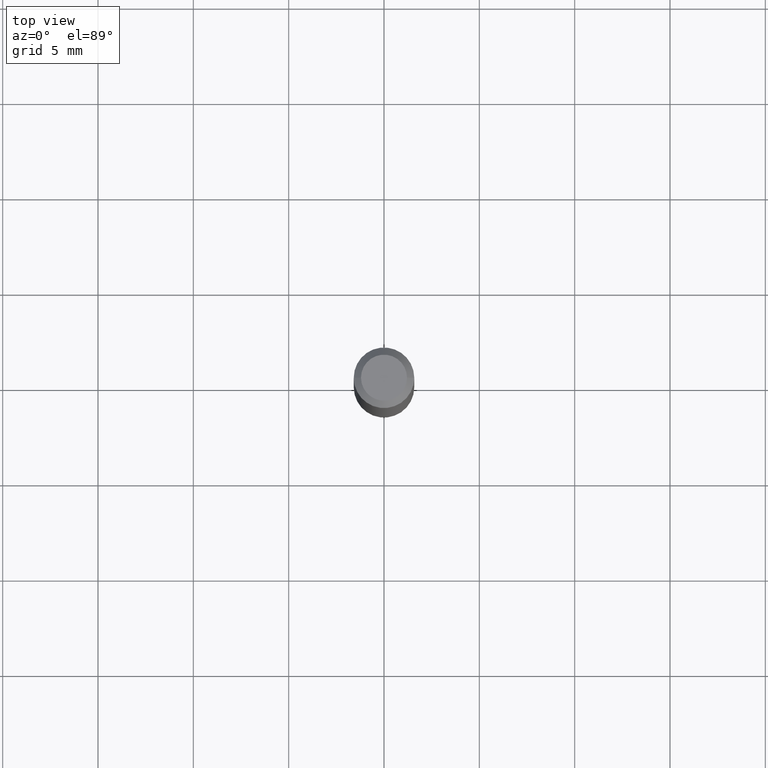
[diagram: clean part render]
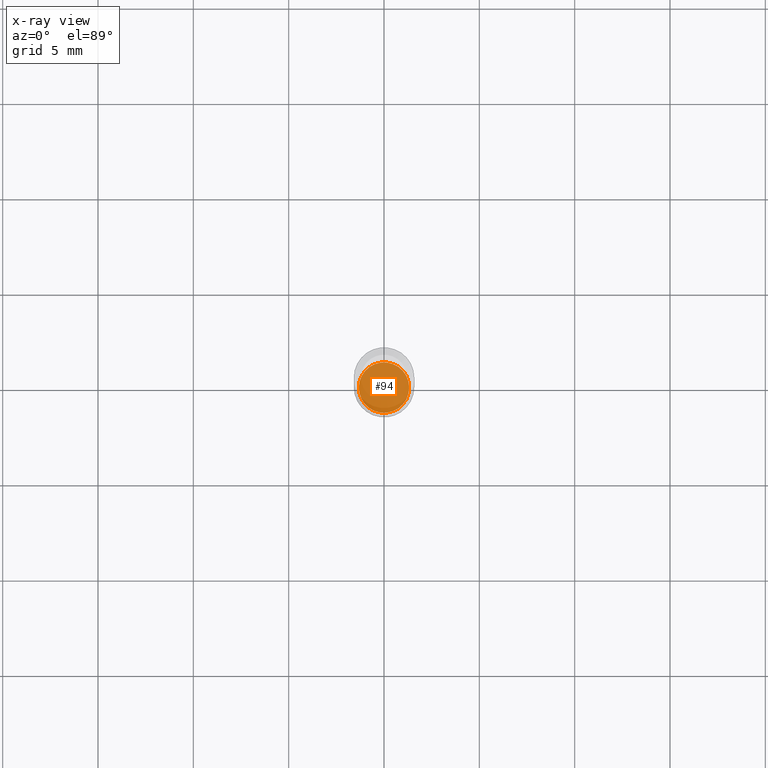
[diagram: x-ray — body ghosted, one internal face saturated and labeled with its STEP entity id]
A machine part, top view, then the same camera in x-ray: the body is ghosted and one INTERNAL B-rep face — a face not visible from any outside direction — is saturated and labeled: STEP entity #94.
In plain terms, the highlighted planar face has unit normal (-0, 0, 1).
Its self-contained STEP definition (entity closure, byte-faithful):
#35 = DIRECTION ( 'NONE',  ( 1.000000000000000000, -6.982962677686265922E-15, 4.876176775795935793E-29 ) ) ;
#45 = CIRCLE ( 'NONE', #242, 0.05200000000000001149 ) ;
#65 = CIRCLE ( 'NONE', #322, 0.05200000000000001149 ) ;
#68 = ORIENTED_EDGE ( 'NONE', *, *, #454, .F. ) ;
#70 = DIRECTION ( 'NONE',  ( 1.000000000000000000, -6.982962677686265922E-15, 0.000000000000000000 ) ) ;
#74 = CARTESIAN_POINT ( 'NONE',  ( 2.897880535329386822E-29, -4.137405386529127541E-15, -1.185000000000000053 ) ) ;
#83 = FACE_OUTER_BOUND ( 'NONE', #181, .T. ) ;
#94 = ADVANCED_FACE ( 'NONE', ( #83 ), #352, .F. ) ;
#127 = DIRECTION ( 'NONE',  ( -2.445468806185136597E-29, 3.491481338843145583E-15, 1.000000000000000000 ) ) ;
#137 = VERTEX_POINT ( 'NONE', #286 ) ;
#140 = EDGE_CURVE ( 'NONE', #137, #297, #65, .T. ) ;
#148 = DIRECTION ( 'NONE',  ( -2.445468806185136597E-29, 3.491481338843145583E-15, 1.000000000000000000 ) ) ;
#160 = CARTESIAN_POINT ( 'NONE',  ( 2.897880535329386822E-29, -4.137405386529127541E-15, -1.185000000000000053 ) ) ;
#181 = EDGE_LOOP ( 'NONE', ( #393, #68 ) ) ;
#232 = DIRECTION ( 'NONE',  ( -2.438088387897960049E-29, 3.491481338843145188E-15, 1.000000000000000000 ) ) ;
#242 = AXIS2_PLACEMENT_3D ( 'NONE', #160, #148, #70 ) ;
#263 = CARTESIAN_POINT ( 'NONE',  ( -0.05200000000000001149, -3.765273936759763915E-15, -1.185000000000000053 ) ) ;
#286 = CARTESIAN_POINT ( 'NONE',  ( 0.05200000000000001149, -4.500519445768813694E-15, -1.185000000000000053 ) ) ;
#297 = VERTEX_POINT ( 'NONE', #263 ) ;
#306 = AXIS2_PLACEMENT_3D ( 'NONE', #74, #232, #35 ) ;
#321 = CARTESIAN_POINT ( 'NONE',  ( 2.897880535329386822E-29, -4.137405386529127541E-15, -1.185000000000000053 ) ) ;
#322 = AXIS2_PLACEMENT_3D ( 'NONE', #321, #127, #451 ) ;
#352 = PLANE ( 'NONE',  #306 ) ;
#393 = ORIENTED_EDGE ( 'NONE', *, *, #140, .F. ) ;
#451 = DIRECTION ( 'NONE',  ( 1.000000000000000000, -6.982962677686265922E-15, 0.000000000000000000 ) ) ;
#454 = EDGE_CURVE ( 'NONE', #297, #137, #45, .T. ) ;